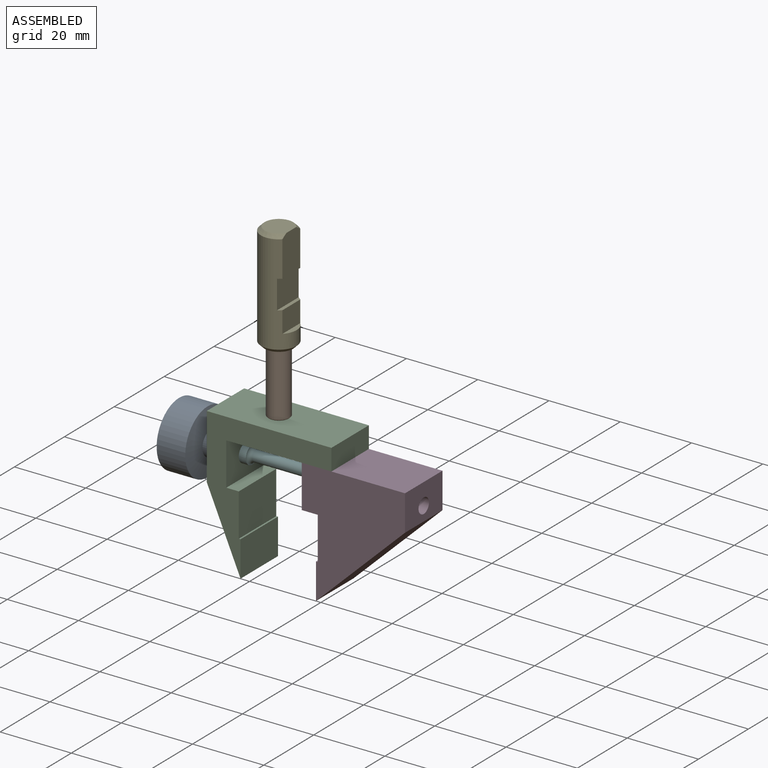
[diagram: assembled view]
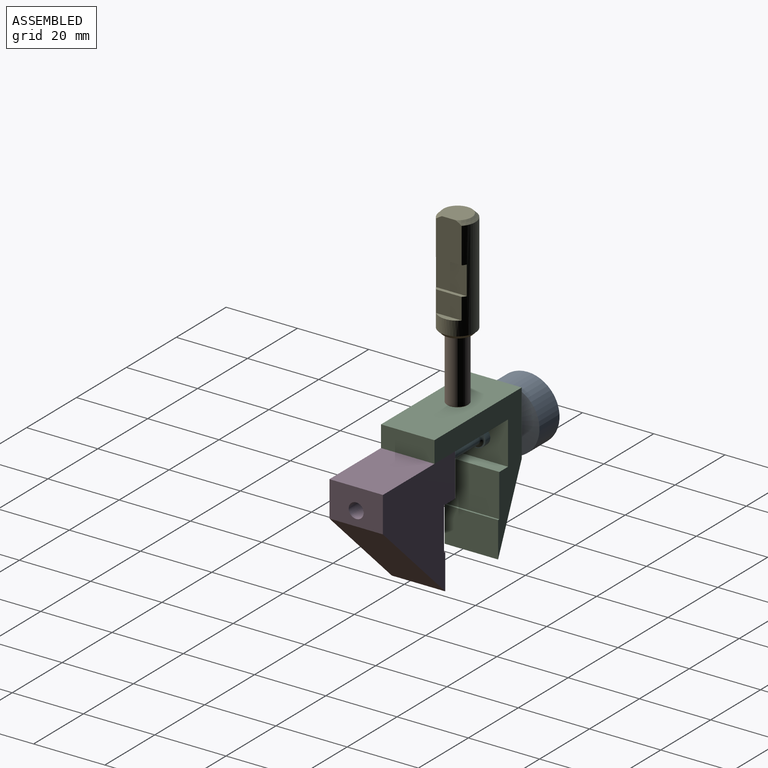
[diagram: assembled view, second angle]
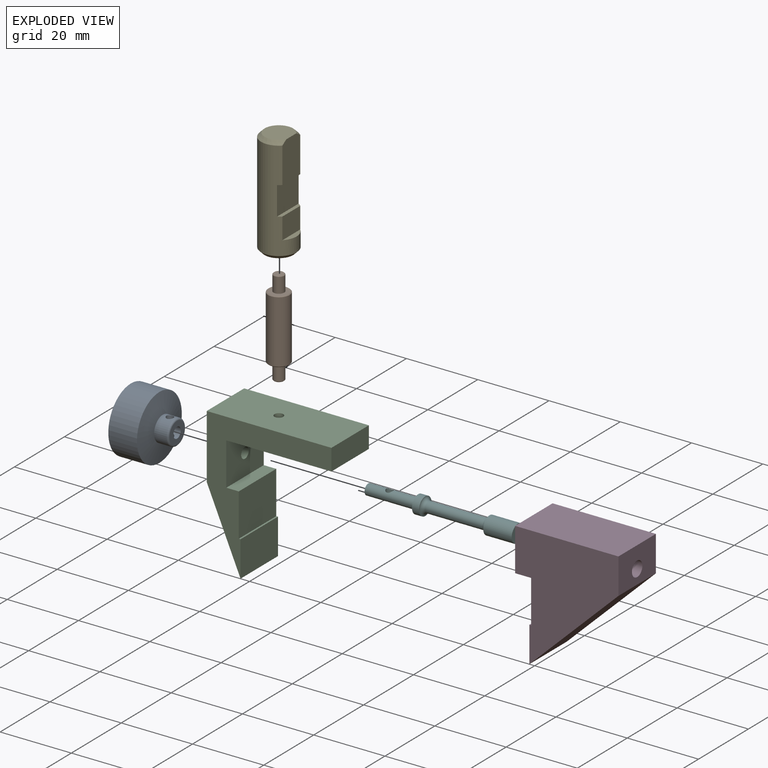
[diagram: exploded view]
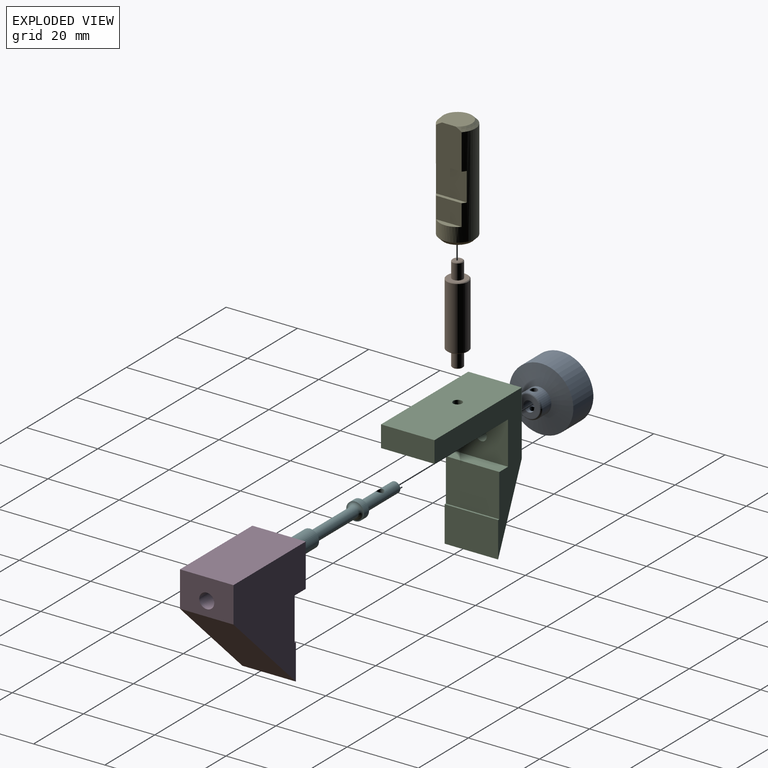
[diagram: exploded view, second angle]
ASSEMBLY  parts=6 mates=9
PART A: 11 faces, bbox 13x18x18 mm
  f0: cylinder r=1.5mm len=8mm, axis (1,0,0), area 68.7mm2, adj f5,f7,f8,f10
  f1: cylinder r=3.5mm len=7mm, axis (1,0,0), area 70.6mm2, adj f4,f6,f7,f8
  f2: plane 18x18mm, normal (1,0,0), area 53.4mm2, adj f3,f9
  f3: cylinder r=9mm len=18mm, axis (1,0,0), area 454.1mm2, adj f2,f4
  f4: cone r=3.5mm half-angle=80deg, axis (1,0,0), area 219.3mm2, adj f1,f3
  f5: plane 6x6mm, normal (-1,0,0), area 21.2mm2, adj f0,f6
  f6: torus R=3mm, axis (1,0,0), area 16.4mm2, adj f1,f5
  f7: cylinder r=1mm len=2.38mm, axis (0,0,1), area 13.3mm2, adj f0,f1
  f8: cylinder r=1mm len=2.38mm, axis (0,0,-1), area 13.3mm2, adj f0,f1
  f9: cylinder r=8mm len=16mm, axis (1,0,0), area 251.3mm2, adj f2,f10
  f10: plane 16x16mm, normal (1,0,0), area 194mm2, adj f0,f9
PART B: 11 faces, bbox 27x6x6 mm
  f0: plane 2.6x2.6mm, normal (-1,0,0), area 5.3mm2, adj f8
  f1: plane 2.6x2.6mm, normal (1,0,0), area 5.3mm2, adj f7
  f2: cylinder r=1.5mm len=4.3mm, axis (-1,0,0), area 40.5mm2, adj f3,f7
  f3: plane 5.6x5.6mm, normal (1,0,0), area 17.6mm2, adj f2,f10
  f4: cylinder r=3mm len=17.6mm, axis (-1,0,0), area 331.8mm2, adj f9,f10
  f5: plane 5.6x5.6mm, normal (-1,0,0), area 17.6mm2, adj f6,f9
  f6: cylinder r=1.5mm len=4.3mm, axis (-1,0,0), area 40.5mm2, adj f5,f8
  f7: cone r=1.5mm half-angle=45deg, axis (-1,0,0), area 2.5mm2, adj f1,f2
  f8: cone r=1.3mm half-angle=45deg, axis (1,0,0), area 2.5mm2, adj f0,f6
  f9: cone r=2.8mm half-angle=45deg, axis (1,0,0), area 5.2mm2, adj f4,f5
  f10: cone r=3mm half-angle=45deg, axis (-1,0,0), area 5.2mm2, adj f3,f4
PART C: 14 faces, bbox 35x15x40 mm
  f0: plane 15x3.5mm, normal (0,0,1), area 52.5mm2, adj f7,f8,f9,f12
  f1: plane 29.5x15mm, normal (0,0,-1), area 437.6mm2, adj f2,f7,f8,f9,f10
  f2: plane 15x6mm, normal (1,0,0), area 90mm2, adj f1,f3,f8,f9
  f3: plane 35x15mm, normal (0,0,1), area 520.1mm2, adj f2,f4,f8,f9,f10
  f4: plane 18x15mm, normal (-1,0,0), area 262.9mm2, adj f3,f5,f8,f9,f11
  f5: plane 22x15mm, normal (-0.92,0,-0.4), area 359.5mm2, adj f4,f6,f8,f9
  f6: plane 15x10mm, normal (1,0,0), area 150mm2, adj f5,f8,f9,f13
  f7: plane 15x12mm, normal (1,0,0), area 172.9mm2, adj f0,f1,f8,f9,f11
  f8: plane 40x35mm, normal (0,-1,0), area 374.5mm2, adj f0,f1,f2,f3,f4,f5,f6,f7
  f9: plane 40x35mm, normal (0,1,0), area 374.5mm2, adj f0,f1,f2,f3,f4,f5,f6,f7
  f10: cylinder r=1.25mm len=6mm, axis (0,0,1), area 47.1mm2, adj f1,f3
  f11: cylinder r=1.5mm len=5.5mm, axis (1,0,0), area 51.8mm2, adj f4,f7
  f12: plane 15x12mm, normal (1,0,0), area 180mm2, adj f0,f8,f9,f13
  f13: plane 15x0.5mm, normal (0,0,1), area 7.5mm2, adj f6,f8,f9,f12
PART D: 13 faces, bbox 29x15x34 mm
  f0: cylinder r=2.1mm len=21.61mm, axis (1,0,0), area 285.1mm2, adj f8,f11
  f1: plane 34x29mm, normal (0,-1,0), area 592mm2, adj f3,f4,f5,f6,f7,f8,f9,f10
  f2: plane 34x29mm, normal (0,1,0), area 592mm2, adj f3,f4,f5,f6,f7,f8,f9,f10
  f3: plane 29x15mm, normal (0,0,1), area 435mm2, adj f1,f2,f4,f8
  f4: plane 15x12mm, normal (-1,0,0), area 156.2mm2, adj f1,f2,f3,f5,f12
  f5: plane 15x4.5mm, normal (0,0,-1), area 67.5mm2, adj f1,f2,f4,f10
  f6: plane 15x10mm, normal (-1,0,0), area 150mm2, adj f1,f2,f7,f9
  f7: plane 25x24mm, normal (0.69,0,-0.72), area 519.8mm2, adj f1,f2,f6,f8
  f8: plane 15x10mm, normal (1,0,0), area 136.1mm2, adj f0,f1,f2,f3,f7
  f9: plane 15x0.5mm, normal (0,0,1), area 7.5mm2, adj f1,f2,f6,f10
  f10: plane 15x12mm, normal (-1,0,0), area 180mm2, adj f1,f2,f5,f9
  f11: cone r=0mm half-angle=59deg, axis (-1,0,0), area 11.6mm2, adj f0,f12
  f12: cylinder r=2.75mm len=7mm, axis (-1,0,0), area 121mm2, adj f4,f11
PART E: 14 faces, bbox 10x30x10 mm
  f0: cylinder r=5mm len=28mm, axis (0,1,0), area 656mm2, adj f1,f4,f5,f6,f7,f8,f9,f10
  f1: cylinder r=5mm len=10mm, axis (0,1,0), area 12.6mm2, adj f0,f4,f9,f11
  f2: plane 8x8mm, normal (0,-1,0), area 45.4mm2, adj f10,f13
  f3: plane 8x7.5mm, normal (0,1,0), area 49mm2, adj f9,f11
  f4: plane 8.66x1mm, normal (0,-1,0), area 8mm2, adj f0,f1,f5,f9
  f5: plane 8.66x8mm, normal (1,0,0), area 69.3mm2, adj f0,f4,f6
  f6: plane 8.66x1mm, normal (0,1,0), area 8mm2, adj f0,f5,f7
  f7: plane 7.14x6mm, normal (1,0,0), area 42.8mm2, adj f0,f6,f8
  f8: plane 7.14x1.5mm, normal (0,1,0), area 7.4mm2, adj f0,f7
  f9: plane 11x7.14mm, normal (1,0,0), area 77mm2, adj f0,f1,f3,f4,f11
  f10: cone r=4mm half-angle=45deg, axis (0,1,0), area 40mm2, adj f0,f2
  f11: cone r=5mm half-angle=45deg, axis (0,-1,0), area 31.4mm2, adj f0,f1,f3,f9
  f12: cone r=0mm half-angle=59deg, axis (0,-1,0), area 5.7mm2, adj f13
  f13: cylinder r=1.25mm len=6mm, axis (0,-1,0), area 47.1mm2, adj f2,f12
PART F: 10 faces, bbox 42x5.4x5.4 mm
  f0: cylinder r=1.5mm len=14mm, axis (-1,0,0), area 125.2mm2, adj f2,f3,f9
  f1: plane 5x5mm, normal (-1,0,0), area 19.6mm2, adj f6
  f2: plane 3x3mm, normal (1,0,0), area 7.1mm2, adj f0
  f3: plane 5x5mm, normal (1,0,0), area 12.6mm2, adj f0,f4
  f4: cylinder r=2.5mm len=5mm, axis (-1,0,0), area 31.4mm2, adj f3,f7
  f5: cylinder r=1.5mm len=16mm, axis (-1,0,0), area 150.8mm2, adj f7,f8
  f6: cylinder r=2.5mm len=8mm, axis (-1,0,0), area 125.7mm2, adj f1,f8
  f7: torus R=2.5mm, axis (1,0,0), area 18.4mm2, adj f4,f5
  f8: torus R=2.5mm, axis (-1,0,0), area 18.4mm2, adj f5,f6
  f9: cylinder r=1mm len=3mm, axis (0,0,1), area 16.5mm2, adj f0
PLACE A rot(axis=(0,-1,0),180deg) t=(-16.45,-15.47,4.16)mm
PLACE B rot(axis=(-0.71,0,-0.71),180deg) t=(5.05,-15.47,25.16)mm
PLACE C t=(7.55,-15.47,6.16)mm
PLACE D t=(31.22,-15.47,4.16)mm
PLACE E rot(axis=(1,0,0),90deg) t=(5.05,-15.47,49.16)mm
PLACE F rot(axis=(0,-1,0),180deg) t=(6.55,-15.47,4.16)mm
MATE cylindrical B.f2 <-> E.f0  axis (0,0,-1) through (5.05,-15.47,36.31)mm
MATE cylindrical B.f2 <-> C.f10  axis (0,0,-1) through (5.05,-15.47,14.01)mm
MATE planar C.f4 <-> A.f0  axis (-1,0,0) through (-9.95,-22.97,-1.84)mm
MATE cylindrical D.f11 <-> F.f0  axis (-1,0,0) through (16.72,-15.47,4.16)mm
MATE planar B.f2 <-> C.f3  axis (0,0,-1) through (5.05,-15.47,16.16)mm
MATE planar B.f2 <-> E.f0  axis (0,0,1) through (5.05,-15.47,34.16)mm
MATE cylindrical A.f0 <-> F.f0  axis (1,0,0) through (-9.95,-15.47,4.16)mm
MATE planar F.f0 <-> C.f11  axis (-1,0,0) through (-4.45,-15.47,4.16)mm
MATE cylindrical F.f0 <-> C.f11  axis (1,0,0) through (-11.45,-15.47,4.16)mm
